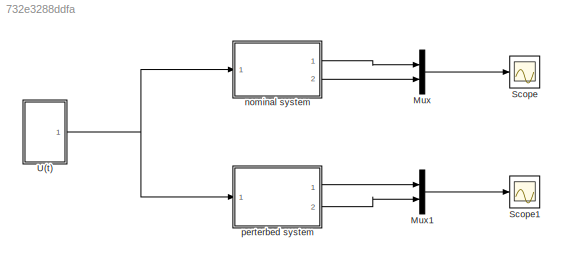
MODEL slx_732e3288ddfa
KIND model
CONFIG AbsTol = auto
CONFIG EnableMultiTasking = off
CONFIG FixedStep = auto
CONFIG MaxStep = auto
CONFIG MinStep = auto
CONFIG RelTol = 1e-3
CONFIG SampleTimeConstraint = Unconstrained
CONFIG Solver = VariableStepAuto
CONFIG SolverName = VariableStepAuto
CONFIG StartTime = 0.0
CONFIG StopTime = 40
BLOCK [Mux] Mux
  DisplayOption = bar
  Inputs = 2
  Ports = [2, 1]
BLOCK [Mux] Mux1
  DisplayOption = bar
  Inputs = 2
  Ports = [2, 1]
BLOCK [Scope] Scope
  Floating = off
  NumInputPorts = 1
  Ports = [1]
  ScopeSpecificationString = Simulink.scopes.TimeScopeBlockCfg('CurrentConfiguration', extmgr.ConfigurationSet(extmgr.Configuration('Core','General UI',true),extmgr.Configuration('Core','Source UI',true),extmgr.Configuration('Sources','WiredSimulink',true),extmgr.Configuration('Visuals','Time Domain',true,'SerializedDisplays',{struct('MinYLimReal','-995.91357','MaxYLimReal','251.81991','YLabelReal','','MinYLimMag',' 0.00000',...<+1369ch>
BLOCK [Scope] Scope1
  Floating = off
  NumInputPorts = 1
  Ports = [1]
  ScopeSpecificationString = Simulink.scopes.TimeScopeBlockCfg('CurrentConfiguration', extmgr.ConfigurationSet(extmgr.Configuration('Core','General UI',true),extmgr.Configuration('Core','Source UI',true),extmgr.Configuration('Sources','WiredSimulink',true,'DataLoggingVariableName','ScopeData1'),extmgr.Configuration('Visuals','Time Domain',true),extmgr.Configuration('Tools','Plot Navigation',true),extmgr.Configuration('Tools',...<+40ch>
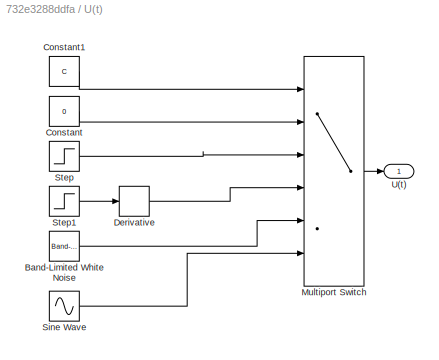
BLOCK [SubSystem] U(t)
  Ports = [0, 1]
  RequestExecContextInheritance = off
BLOCK [Reference] U(t)/Band-Limited White Noise  REF=simulink/Sources/Band-Limited
White Noise
  Ports = [0, 1]
  SourceBlock = simulink/Sources/Band-Limited\nWhite Noise
  SourceProductBaseCode = SL
  SourceProductName = Simulink
  SourceType = Band-Limited White Noise.
BLOCK [Constant] U(t)/Constant
  Value = 0
BLOCK [Constant] U(t)/Constant1
  Value = C
BLOCK [Derivative] U(t)/Derivative
BLOCK [MultiPortSwitch] U(t)/Multiport Switch
  InputSameDT = off
  Inputs = 5
  Ports = [6, 1]
  SaturateOnIntegerOverflow = off
BLOCK [Sin] U(t)/Sine Wave
  Amplitude = A
  Frequency = W
  Ports = [0, 1]
  SampleTime = 0
BLOCK [Step] U(t)/Step
  After = 20
  SampleTime = 0
  Time = 0
BLOCK [Step] U(t)/Step1
  After = 20
  SampleTime = 0
  Time = 0
BLOCK [Outport] U(t)/U(t)
  IconDisplay = Port number
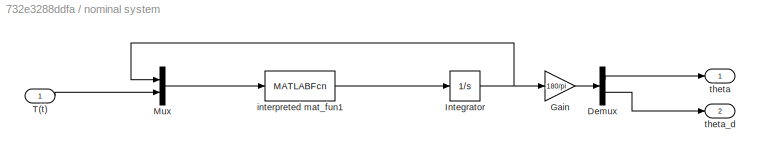
BLOCK [SubSystem] nominal system
  Ports = [1, 2]
  RequestExecContextInheritance = off
BLOCK [Demux] nominal system/Demux
  DisplayOption = bar
  Outputs = 2
  Ports = [1, 2]
BLOCK [Gain] nominal system/Gain
  Gain = 180/pi
  OutDataTypeStr = Inherit: Inherit via internal rule
  ParamDataTypeStr = Inherit: Inherit via internal rule
  SaturateOnIntegerOverflow = off
BLOCK [Integrator] nominal system/Integrator
  InitialCondition = x0
  Ports = [1, 1]
BLOCK [Mux] nominal system/Mux
  DisplayOption = bar
  Inputs = 2
  Ports = [2, 1]
BLOCK [Inport] nominal system/T(t)
  IconDisplay = Port number
BLOCK [MATLABFcn] nominal system/interpreted mat_fun1
  MATLABFcn = pendulum(u, 1)
  Ports = [1, 1]
BLOCK [Outport] nominal system/theta
  IconDisplay = Port number
BLOCK [Outport] nominal system/theta_d
  IconDisplay = Port number
  Port = 2
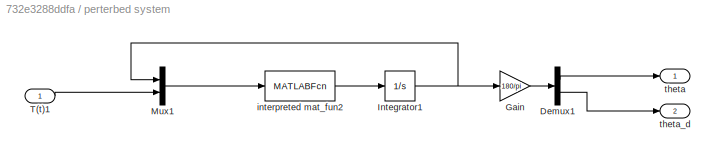
BLOCK [SubSystem] perterbed system
  Ports = [1, 2]
  RequestExecContextInheritance = off
BLOCK [Demux] perterbed system/Demux1
  DisplayOption = bar
  Outputs = 2
  Ports = [1, 2]
BLOCK [Gain] perterbed system/Gain
  Gain = 180/pi
  OutDataTypeStr = Inherit: Inherit via internal rule
  ParamDataTypeStr = Inherit: Inherit via internal rule
  SaturateOnIntegerOverflow = off
BLOCK [Integrator] perterbed system/Integrator1
  InitialCondition = x0_pert
  Ports = [1, 1]
BLOCK [Mux] perterbed system/Mux1
  DisplayOption = bar
  Inputs = 2
  Ports = [2, 1]
BLOCK [Inport] perterbed system/T(t)1
  IconDisplay = Port number
BLOCK [MATLABFcn] perterbed system/interpreted mat_fun2
  MATLABFcn = pendulum(u, 2)
  Ports = [1, 1]
BLOCK [Outport] perterbed system/theta
  IconDisplay = Port number
BLOCK [Outport] perterbed system/theta_d
  IconDisplay = Port number
  Port = 2
LINE Mux1:1 -> Scope1:1
LINE Mux:1 -> Scope:1
LINE U(t)/Band-Limited White Noise:1 -> U(t)/Multiport Switch:5
LINE U(t)/Constant1:1 -> U(t)/Multiport Switch:1
LINE U(t)/Constant:1 -> U(t)/Multiport Switch:2
LINE U(t)/Derivative:1 -> U(t)/Multiport Switch:4
LINE U(t)/Multiport Switch:1 -> U(t)/U(t):1
LINE U(t)/Sine Wave:1 -> U(t)/Multiport Switch:6
LINE U(t)/Step1:1 -> U(t)/Derivative:1
LINE U(t)/Step:1 -> U(t)/Multiport Switch:3
NET U(t):1 -> nominal system:1, perterbed system:1
LINE nominal system/Demux:1 -> nominal system/theta:1
LINE nominal system/Demux:2 -> nominal system/theta_d:1
LINE nominal system/Gain:1 -> nominal system/Demux:1
NET nominal system/Integrator:1 -> nominal system/Gain:1, nominal system/Mux:1
LINE nominal system/Mux:1 -> nominal system/interpreted mat_fun1:1
LINE nominal system/T(t):1 -> nominal system/Mux:2
LINE nominal system/interpreted mat_fun1:1 -> nominal system/Integrator:1
LINE nominal system:1 -> Mux:1
LINE nominal system:2 -> Mux:2
LINE perterbed system/Demux1:1 -> perterbed system/theta:1
LINE perterbed system/Demux1:2 -> perterbed system/theta_d:1
LINE perterbed system/Gain:1 -> perterbed system/Demux1:1
NET perterbed system/Integrator1:1 -> perterbed system/Gain:1, perterbed system/Mux1:1
LINE perterbed system/Mux1:1 -> perterbed system/interpreted mat_fun2:1
LINE perterbed system/T(t)1:1 -> perterbed system/Mux1:2
LINE perterbed system/interpreted mat_fun2:1 -> perterbed system/Integrator1:1
LINE perterbed system:1 -> Mux1:1
LINE perterbed system:2 -> Mux1:2
note: NET lines group one-source signal fan-out (src -> all destinations, sorted); 1:1 wires keep LINE
